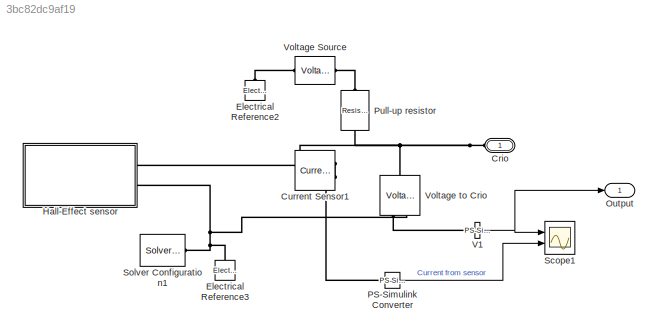
MODEL slx_3bc82dc9af19
KIND model
CONFIG AbsTol = auto
CONFIG EnableMultiTasking = off
CONFIG FixedStep = auto
CONFIG MaxStep = auto
CONFIG MinStep = auto
CONFIG RelTol = 1e-3
CONFIG SampleTimeConstraint = Unconstrained
CONFIG SolverName = VariableStepAuto
CONFIG StartTime = 0.0
CONFIG StopTime = 3
BLOCK [PMIOPort] Crio
  Side = Left
BLOCK [Reference] Current Sensor1  REF=fl_lib/Electrical/Electrical Sensors/Current Sensor
  NameLocation = top
  Ports = [0, 0, 0, 0, 0, 1, 2]
  SourceBlock = fl_lib/Electrical/Electrical Sensors/Current Sensor
  SourceProductBaseCode = SS
  SourceType = Current Sensor
BLOCK [Reference] Electrical Reference2  REF=fl_lib/Electrical/Electrical Elements/Electrical Reference
  NameLocation = right
  Ports = [0, 0, 0, 0, 0, 1]
  SourceBlock = fl_lib/Electrical/Electrical Elements/Electrical Reference
  SourceProductBaseCode = SS
  SourceType = Electrical Reference
BLOCK [Reference] Electrical Reference3  REF=fl_lib/Electrical/Electrical Elements/Electrical Reference
  NameLocation = right
  Ports = [0, 0, 0, 0, 0, 1]
  SourceBlock = fl_lib/Electrical/Electrical Elements/Electrical Reference
  SourceProductBaseCode = SS
  SourceType = Electrical Reference
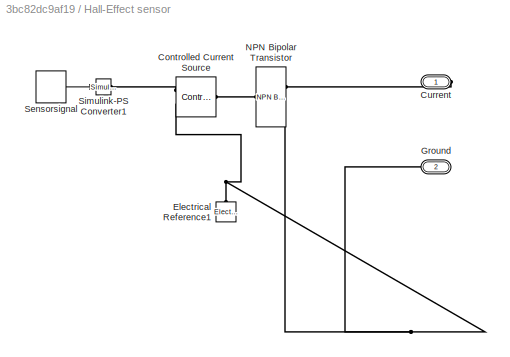
BLOCK [SubSystem] Hall-Effect sensor
  Ports = [0, 0, 0, 0, 0, 0, 2]
  RequestExecContextInheritance = off
BLOCK [Reference] Hall-Effect sensor/Controlled Current Source  REF=fl_lib/Electrical/Electrical Sources/Controlled Current
Source
  Ports = [0, 0, 0, 0, 0, 1, 2]
  SourceBlock = fl_lib/Electrical/Electrical Sources/Controlled Current\nSource
  SourceProductBaseCode = SS
  SourceType = Controlled Current\nSource
BLOCK [PMIOPort] Hall-Effect sensor/Current 
  Side = Right
BLOCK [Reference] Hall-Effect sensor/Electrical Reference1  REF=fl_lib/Electrical/Electrical Elements/Electrical Reference
  NameLocation = right
  Ports = [0, 0, 0, 0, 0, 1]
  SourceBlock = fl_lib/Electrical/Electrical Elements/Electrical Reference
  SourceProductBaseCode = SS
  SourceType = Electrical Reference
BLOCK [PMIOPort] Hall-Effect sensor/Ground 
  Port = 2
  Side = Right
BLOCK [Reference] Hall-Effect sensor/NPN Bipolar Transistor  REF=ee_lib/Semiconductors &
Converters/NPN Bipolar
Transistor
  Ports = [0, 0, 0, 0, 0, 1, 2]
  SourceBlock = ee_lib/Semiconductors &\nConverters/NPN Bipolar\nTransistor
  SourceProductBaseCode = PS
  SourceType = NPN Bipolar\nTransistor
BLOCK [DiscretePulseGenerator] Hall-Effect sensor/Sensorsignal
  Amplitude = 0.02
  Period = 0.5
  PhaseDelay = 0.1
  Ports = [0, 1]
  PulseType = Time based
  PulseWidth = 50
BLOCK [Reference] Hall-Effect sensor/Simulink-PS Converter1  REF=nesl_utility/Simulink-PS
Converter
  Ports = [1, 0, 0, 0, 0, 0, 1]
  SourceBlock = nesl_utility/Simulink-PS\nConverter
  SourceProductBaseCode = SS
  SourceType = Simulink-PS\nConverter
BLOCK [Outport] Output
BLOCK [Reference] PS-Simulink Converter  REF=nesl_utility/PS-Simulink
Converter
  Ports = [0, 1, 0, 0, 0, 1]
  SourceBlock = nesl_utility/PS-Simulink\nConverter
  SourceProductBaseCode = SS
  SourceType = PS-Simulink\nConverter
BLOCK [Reference] Pull-up resistor  REF=fl_lib/Electrical/Electrical Elements/Resistor
  NameLocation = right
  Ports = [0, 0, 0, 0, 0, 1, 1]
  SourceBlock = fl_lib/Electrical/Electrical Elements/Resistor
  SourceProductBaseCode = SS
  SourceType = Resistor
BLOCK [Scope] Scope1
  Floating = off
  NumInputPorts = 2
  Ports = [2]
  ScopeSpecificationString = Simulink.scopes.TimeScopeBlockCfg('CurrentConfiguration', extmgr.ConfigurationSet(extmgr.Configuration('Core','General UI',true),extmgr.Configuration('Core','Source UI',true),extmgr.Configuration('Sources','WiredSimulink',true,'DataLoggingVariableName','ScopeData1'),extmgr.Configuration('Visuals','Time Domain',true,'SerializedDisplays',{struct('MinYLimReal','-0.67209','MaxYLimReal','6.0489','YLabe...<+2121ch>
BLOCK [Reference] Solver Configuration1  REF=nesl_utility/Solver
Configuration
  Ports = [0, 0, 0, 0, 0, 0, 1]
  SourceBlock = nesl_utility/Solver\nConfiguration
  SourceProductBaseCode = SS
  SourceType = Solver\nConfiguration
BLOCK [Reference] V1  REF=nesl_utility/PS-Simulink
Converter
  NameLocation = top
  Ports = [0, 1, 0, 0, 0, 1]
  SourceBlock = nesl_utility/PS-Simulink\nConverter
  SourceProductBaseCode = SS
  SourceType = PS-Simulink\nConverter
BLOCK [Reference] Voltage Source  REF=ee_lib/Sources/Voltage Source
  Ports = [0, 0, 0, 0, 0, 1, 1]
  SourceBlock = ee_lib/Sources/Voltage Source
  SourceProductBaseCode = PS
  SourceType = Voltage Source
BLOCK [Reference] Voltage to Crio  REF=fl_lib/Electrical/Electrical Sensors/Voltage Sensor
  NameLocation = right
  Ports = [0, 0, 0, 0, 0, 1, 2]
  SourceBlock = fl_lib/Electrical/Electrical Sensors/Voltage Sensor
  SourceProductBaseCode = SS
  SourceType = Voltage Sensor
LINE Hall-Effect sensor/Sensorsignal:1 -> Hall-Effect sensor/Simulink-PS Converter1:1
LINE PS-Simulink Converter:1 -> Scope1:2
NET V1:1 -> Output:1, Scope1:1
PNET net1: Crio:RConn1 -- Current Sensor1:LConn1 -- Pull-up resistor:LConn1 -- Voltage to Crio:LConn1
PLINE Current Sensor1:RConn1 -- PS-Simulink Converter:LConn1
PLINE Current Sensor1:RConn2 -- Hall-Effect sensor:RConn1
PLINE Electrical Reference2:LConn1 -- Voltage Source:RConn1
PNET net2: Electrical Reference3:LConn1 -- Hall-Effect sensor:RConn2 -- Solver Configuration1:RConn1 -- Voltage to Crio:RConn2
PLINE Hall-Effect sensor/Controlled Current Source:LConn1 -- Hall-Effect sensor/NPN Bipolar Transistor:LConn1
PLINE Hall-Effect sensor/Controlled Current Source:RConn1 -- Hall-Effect sensor/Simulink-PS Converter1:RConn1
PNET net3: Hall-Effect sensor/Controlled Current Source:RConn2 -- Hall-Effect sensor/Electrical Reference1:LConn1 -- Hall-Effect sensor/Ground :RConn1 -- Hall-Effect sensor/NPN Bipolar Transistor:RConn2
PLINE Hall-Effect sensor/Current :RConn1 -- Hall-Effect sensor/NPN Bipolar Transistor:RConn1
PLINE Pull-up resistor:RConn1 -- Voltage Source:LConn1
PLINE V1:LConn1 -- Voltage to Crio:RConn1
note: NET lines group one-source signal fan-out (src -> all destinations, sorted); 1:1 wires keep LINE; PNET lines group multi-terminal physical nets as a canonical sorted terminal list (undirected conserving connections); 2-terminal nets keep the pairwise PLINE form
